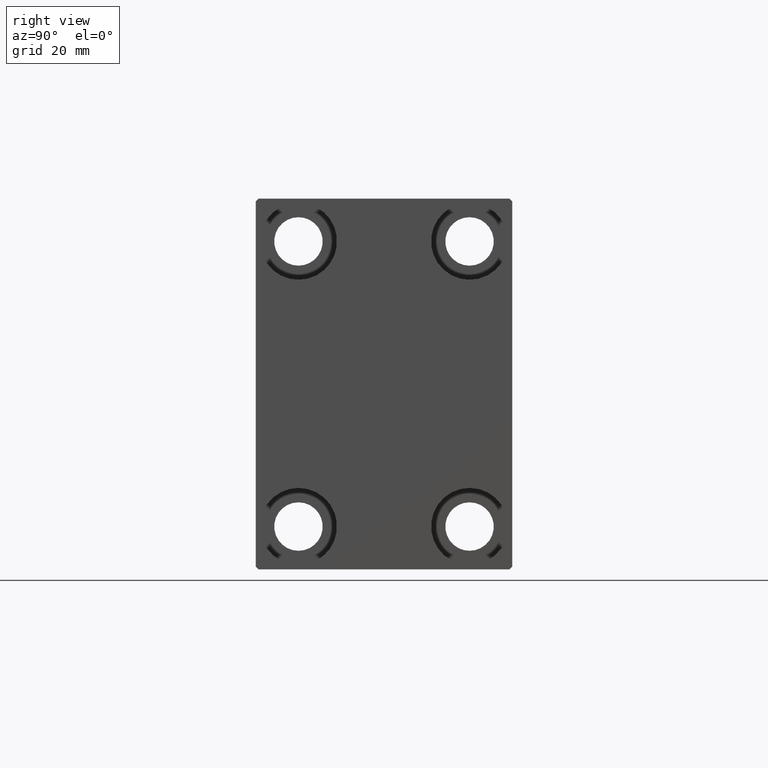
[diagram: clean part render]
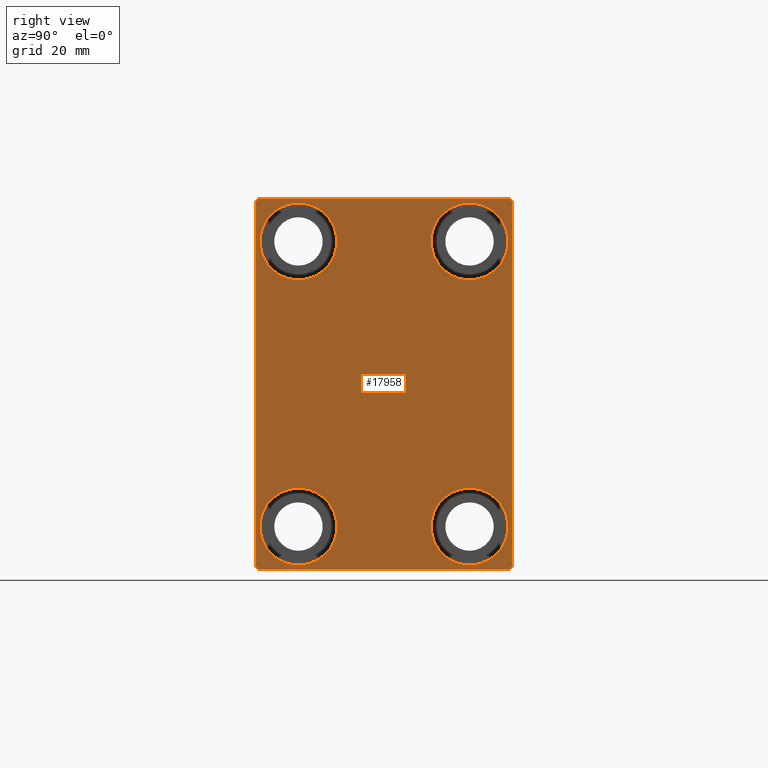
[diagram: same view with one face highlighted and labeled with its STEP entity id]
A machine part, right view. The second image highlights one B-rep face of the part: STEP entity #17958.
In plain terms, the highlighted planar face has unit normal (1, 0, 0).
Its self-contained STEP definition (entity closure, byte-faithful):
#405 = CARTESIAN_POINT ( 'NONE',  ( 70.00000000000000000, -22.50000000000000711, -32.00000000000000711 ) ) ;
#417 = CARTESIAN_POINT ( 'NONE',  ( 70.00000000000000000, -27.25000000000032330, -27.24999999999957012 ) ) ;
#1159 = CARTESIAN_POINT ( 'NONE',  ( 70.00000000000000000, 22.49999999999999289, 31.99999999999999289 ) ) ;
#1276 = DIRECTION ( 'NONE',  ( -1.000000000000000000, -0.000000000000000000, -0.000000000000000000 ) ) ;
#1317 = ORIENTED_EDGE ( 'NONE', *, *, #11341, .T. ) ;
#2338 = AXIS2_PLACEMENT_3D ( 'NONE', #12561, #43592, #9415 ) ;
#2372 = CIRCLE ( 'NONE', #3816, 6.749999999999999112 ) ;
#2762 = CARTESIAN_POINT ( 'NONE',  ( 70.00000000000000000, 27.25000000000032685, -27.24999999999957012 ) ) ;
#2795 = EDGE_CURVE ( 'NONE', #37065, #9356, #6783, .T. ) ;
#3186 = VERTEX_POINT ( 'NONE', #7405 ) ;
#3544 = CARTESIAN_POINT ( 'NONE',  ( 70.00000000000000000, -22.00000000000002132, -32.50000000000000711 ) ) ;
#3816 = AXIS2_PLACEMENT_3D ( 'NONE', #6569, #20881, #13290 ) ;
#3933 = FACE_BOUND ( 'NONE', #11805, .T. ) ;
#4301 = VECTOR ( 'NONE', #9015, 1000.000000000000114 ) ;
#4804 = AXIS2_PLACEMENT_3D ( 'NONE', #18365, #34910, #11225 ) ;
#5128 = CIRCLE ( 'NONE', #20104, 6.749999999999999112 ) ;
#5739 = CARTESIAN_POINT ( 'NONE',  ( 70.00000000000000000, -22.50000000000000711, 31.99999999999999289 ) ) ;
#6157 = LINE ( 'NONE', #19797, #11159 ) ;
#6569 = CARTESIAN_POINT ( 'NONE',  ( 70.00000000000000000, -14.99999999999999645, 25.00000000000000000 ) ) ;
#6782 = DIRECTION ( 'NONE',  ( -0.000000000000000000, -0.7071067811865425767, 0.7071067811865525687 ) ) ;
#6783 = LINE ( 'NONE', #16639, #7892 ) ;
#7405 = CARTESIAN_POINT ( 'NONE',  ( 70.00000000000000000, 14.99999999999999645, -31.75000000000000000 ) ) ;
#7892 = VECTOR ( 'NONE', #20194, 1000.000000000000000 ) ;
#8043 = EDGE_CURVE ( 'NONE', #42763, #34830, #24061, .T. ) ;
#8075 = LINE ( 'NONE', #35318, #42559 ) ;
#8164 = CARTESIAN_POINT ( 'NONE',  ( 70.00000000000000000, -14.99999999999999645, 18.25000000000000355 ) ) ;
#8458 = ORIENTED_EDGE ( 'NONE', *, *, #16544, .T. ) ;
#8802 = VECTOR ( 'NONE', #41941, 1000.000000000000114 ) ;
#9015 = DIRECTION ( 'NONE',  ( -0.000000000000000000, 0.7071067811865376918, 0.7071067811865573427 ) ) ;
#9356 = VERTEX_POINT ( 'NONE', #11215 ) ;
#9415 = DIRECTION ( 'NONE',  ( 0.000000000000000000, 0.000000000000000000, 1.000000000000000000 ) ) ;
#9535 = CIRCLE ( 'NONE', #25973, 6.749999999999999112 ) ;
#10192 = EDGE_CURVE ( 'NONE', #27007, #37689, #39935, .T. ) ;
#10963 = CIRCLE ( 'NONE', #20228, 6.749999999999999112 ) ;
#11159 = VECTOR ( 'NONE', #16018, 1000.000000000000000 ) ;
#11215 = CARTESIAN_POINT ( 'NONE',  ( 70.00000000000000000, 22.00000000000001421, -32.50000000000000711 ) ) ;
#11225 = DIRECTION ( 'NONE',  ( 0.000000000000000000, 0.000000000000000000, 1.000000000000000000 ) ) ;
#11341 = EDGE_CURVE ( 'NONE', #3186, #35985, #37894, .T. ) ;
#11805 = EDGE_LOOP ( 'NONE', ( #24363, #38604 ) ) ;
#11923 = EDGE_CURVE ( 'NONE', #34830, #42763, #5128, .T. ) ;
#12199 = DIRECTION ( 'NONE',  ( -1.000000000000000000, -0.000000000000000000, -0.000000000000000000 ) ) ;
#12230 = ORIENTED_EDGE ( 'NONE', *, *, #28853, .T. ) ;
#12481 = ORIENTED_EDGE ( 'NONE', *, *, #19038, .T. ) ;
#12561 = CARTESIAN_POINT ( 'NONE',  ( 70.00000000000000000, 15.00000000000000355, 25.00000000000000000 ) ) ;
#12813 = LINE ( 'NONE', #2762, #4301 ) ;
#13078 = VERTEX_POINT ( 'NONE', #1159 ) ;
#13276 = CARTESIAN_POINT ( 'NONE',  ( 70.00000000000000000, -21.99999999999999289, 32.49999999999999289 ) ) ;
#13290 = DIRECTION ( 'NONE',  ( 0.000000000000000000, 0.000000000000000000, 1.000000000000000000 ) ) ;
#13499 = VERTEX_POINT ( 'NONE', #40076 ) ;
#13716 = LINE ( 'NONE', #27342, #37630 ) ;
#14701 = LINE ( 'NONE', #28328, #8802 ) ;
#15712 = CARTESIAN_POINT ( 'NONE',  ( 70.00000000000000000, 21.99999999999999289, 32.50000000000000000 ) ) ;
#16018 = DIRECTION ( 'NONE',  ( 0.000000000000000000, 0.000000000000000000, -1.000000000000000000 ) ) ;
#16055 = DIRECTION ( 'NONE',  ( 0.000000000000000000, -1.000000000000000000, -1.541976423090495387E-16 ) ) ;
#16169 = DIRECTION ( 'NONE',  ( -1.000000000000000000, -0.000000000000000000, -0.000000000000000000 ) ) ;
#16174 = VECTOR ( 'NONE', #17169, 1000.000000000000000 ) ;
#16544 = EDGE_CURVE ( 'NONE', #24441, #16744, #40875, .T. ) ;
#16639 = CARTESIAN_POINT ( 'NONE',  ( 70.00000000000000000, -22.50000000000000711, -32.50000000000000711 ) ) ;
#16744 = VERTEX_POINT ( 'NONE', #41598 ) ;
#17169 = DIRECTION ( 'NONE',  ( -0.000000000000000000, 0.7071067811865378028, -0.7071067811865573427 ) ) ;
#17199 = ORIENTED_EDGE ( 'NONE', *, *, #20816, .T. ) ;
#17792 = CARTESIAN_POINT ( 'NONE',  ( 70.00000000000000000, 0.000000000000000000, 0.000000000000000000 ) ) ;
#17928 = AXIS2_PLACEMENT_3D ( 'NONE', #42400, #42609, #20794 ) ;
#17958 = ADVANCED_FACE ( 'NONE', ( #21140, #28075, #41248, #3933, #41023 ), #24710, .T. ) ;
#18147 = CIRCLE ( 'NONE', #41717, 6.749999999999999112 ) ;
#18365 = CARTESIAN_POINT ( 'NONE',  ( 70.00000000000000000, -15.00000000000000355, -25.00000000000000000 ) ) ;
#19038 = EDGE_CURVE ( 'NONE', #16744, #24441, #9535, .T. ) ;
#19123 = CARTESIAN_POINT ( 'NONE',  ( 70.00000000000000000, -14.99999999999999645, 25.00000000000000000 ) ) ;
#19797 = CARTESIAN_POINT ( 'NONE',  ( 70.00000000000000000, -22.50000000000000711, 32.49999999999999289 ) ) ;
#20077 = EDGE_LOOP ( 'NONE', ( #39152, #31328, #12230, #30128, #33546, #20588, #32562, #34962 ) ) ;
#20104 = AXIS2_PLACEMENT_3D ( 'NONE', #32909, #16169, #39190 ) ;
#20194 = DIRECTION ( 'NONE',  ( 0.000000000000000000, 1.000000000000000000, 0.000000000000000000 ) ) ;
#20228 = AXIS2_PLACEMENT_3D ( 'NONE', #19123, #12199, #22257 ) ;
#20287 = LINE ( 'NONE', #417, #16174 ) ;
#20439 = ORIENTED_EDGE ( 'NONE', *, *, #21789, .T. ) ;
#20588 = ORIENTED_EDGE ( 'NONE', *, *, #41863, .T. ) ;
#20794 = DIRECTION ( 'NONE',  ( 0.000000000000000000, 0.000000000000000000, 1.000000000000000000 ) ) ;
#20816 = EDGE_CURVE ( 'NONE', #41665, #13499, #2372, .T. ) ;
#20881 = DIRECTION ( 'NONE',  ( -1.000000000000000000, -0.000000000000000000, -0.000000000000000000 ) ) ;
#21140 = FACE_BOUND ( 'NONE', #21670, .T. ) ;
#21293 = EDGE_LOOP ( 'NONE', ( #8458, #12481 ) ) ;
#21670 = EDGE_LOOP ( 'NONE', ( #1317, #31696 ) ) ;
#21752 = EDGE_CURVE ( 'NONE', #37689, #38219, #14701, .T. ) ;
#21789 = EDGE_CURVE ( 'NONE', #13499, #41665, #10963, .T. ) ;
#22257 = DIRECTION ( 'NONE',  ( 0.000000000000000000, 0.000000000000000000, 1.000000000000000000 ) ) ;
#22755 = CARTESIAN_POINT ( 'NONE',  ( 70.00000000000000000, 22.49999999999999289, 32.50000000000000000 ) ) ;
#23514 = CARTESIAN_POINT ( 'NONE',  ( 70.00000000000000000, 15.00000000000000355, 18.25000000000000355 ) ) ;
#23639 = EDGE_CURVE ( 'NONE', #35985, #3186, #18147, .T. ) ;
#23740 = CARTESIAN_POINT ( 'NONE',  ( 70.00000000000000000, -15.00000000000000355, -31.75000000000000000 ) ) ;
#24061 = CIRCLE ( 'NONE', #4804, 6.749999999999999112 ) ;
#24363 = ORIENTED_EDGE ( 'NONE', *, *, #8043, .T. ) ;
#24379 = VERTEX_POINT ( 'NONE', #25754 ) ;
#24441 = VERTEX_POINT ( 'NONE', #23514 ) ;
#24528 = AXIS2_PLACEMENT_3D ( 'NONE', #17792, #27846, #38325 ) ;
#24710 = PLANE ( 'NONE',  #24528 ) ;
#25694 = CARTESIAN_POINT ( 'NONE',  ( 70.00000000000000000, 14.99999999999999645, -18.25000000000000355 ) ) ;
#25754 = CARTESIAN_POINT ( 'NONE',  ( 70.00000000000000000, 22.50000000000000000, -32.00000000000002132 ) ) ;
#25973 = AXIS2_PLACEMENT_3D ( 'NONE', #42132, #1276, #28087 ) ;
#27007 = VERTEX_POINT ( 'NONE', #15712 ) ;
#27342 = CARTESIAN_POINT ( 'NONE',  ( 70.00000000000000000, 27.25000000000014921, 27.24999999999976907 ) ) ;
#27846 = DIRECTION ( 'NONE',  ( 1.000000000000000000, 0.000000000000000000, 0.000000000000000000 ) ) ;
#28075 = FACE_BOUND ( 'NONE', #35652, .T. ) ;
#28087 = DIRECTION ( 'NONE',  ( 0.000000000000000000, 0.000000000000000000, 1.000000000000000000 ) ) ;
#28328 = CARTESIAN_POINT ( 'NONE',  ( 70.00000000000000000, -27.25000000000000000, 27.25000000000000000 ) ) ;
#28586 = CARTESIAN_POINT ( 'NONE',  ( 70.00000000000000000, 14.99999999999999645, -25.00000000000000000 ) ) ;
#28802 = DIRECTION ( 'NONE',  ( 0.000000000000000000, 0.000000000000000000, 1.000000000000000000 ) ) ;
#28853 = EDGE_CURVE ( 'NONE', #38219, #40599, #6157, .T. ) ;
#29296 = VECTOR ( 'NONE', #16055, 1000.000000000000000 ) ;
#29958 = CARTESIAN_POINT ( 'NONE',  ( 70.00000000000000000, -15.00000000000000355, -18.25000000000000355 ) ) ;
#30128 = ORIENTED_EDGE ( 'NONE', *, *, #30728, .T. ) ;
#30646 = EDGE_CURVE ( 'NONE', #24379, #13078, #8075, .T. ) ;
#30728 = EDGE_CURVE ( 'NONE', #40599, #37065, #20287, .T. ) ;
#31328 = ORIENTED_EDGE ( 'NONE', *, *, #21752, .T. ) ;
#31696 = ORIENTED_EDGE ( 'NONE', *, *, #23639, .T. ) ;
#32562 = ORIENTED_EDGE ( 'NONE', *, *, #30646, .T. ) ;
#32909 = CARTESIAN_POINT ( 'NONE',  ( 70.00000000000000000, -15.00000000000000355, -25.00000000000000000 ) ) ;
#33546 = ORIENTED_EDGE ( 'NONE', *, *, #2795, .T. ) ;
#34660 = DIRECTION ( 'NONE',  ( 0.000000000000000000, -1.067522139062650425E-16, 1.000000000000000000 ) ) ;
#34830 = VERTEX_POINT ( 'NONE', #29958 ) ;
#34910 = DIRECTION ( 'NONE',  ( -1.000000000000000000, -0.000000000000000000, -0.000000000000000000 ) ) ;
#34962 = ORIENTED_EDGE ( 'NONE', *, *, #37564, .T. ) ;
#35318 = CARTESIAN_POINT ( 'NONE',  ( 70.00000000000000000, 22.50000000000000000, -32.50000000000000711 ) ) ;
#35652 = EDGE_LOOP ( 'NONE', ( #17199, #20439 ) ) ;
#35985 = VERTEX_POINT ( 'NONE', #25694 ) ;
#37065 = VERTEX_POINT ( 'NONE', #3544 ) ;
#37564 = EDGE_CURVE ( 'NONE', #13078, #27007, #13716, .T. ) ;
#37630 = VECTOR ( 'NONE', #6782, 999.9999999999998863 ) ;
#37689 = VERTEX_POINT ( 'NONE', #13276 ) ;
#37894 = CIRCLE ( 'NONE', #17928, 6.749999999999999112 ) ;
#38219 = VERTEX_POINT ( 'NONE', #5739 ) ;
#38325 = DIRECTION ( 'NONE',  ( 0.000000000000000000, 0.000000000000000000, -1.000000000000000000 ) ) ;
#38604 = ORIENTED_EDGE ( 'NONE', *, *, #11923, .T. ) ;
#39152 = ORIENTED_EDGE ( 'NONE', *, *, #10192, .T. ) ;
#39190 = DIRECTION ( 'NONE',  ( 0.000000000000000000, 0.000000000000000000, 1.000000000000000000 ) ) ;
#39935 = LINE ( 'NONE', #22755, #29296 ) ;
#40076 = CARTESIAN_POINT ( 'NONE',  ( 70.00000000000000000, -14.99999999999999645, 31.75000000000000000 ) ) ;
#40599 = VERTEX_POINT ( 'NONE', #405 ) ;
#40875 = CIRCLE ( 'NONE', #2338, 6.749999999999999112 ) ;
#41023 = FACE_OUTER_BOUND ( 'NONE', #20077, .T. ) ;
#41248 = FACE_BOUND ( 'NONE', #21293, .T. ) ;
#41598 = CARTESIAN_POINT ( 'NONE',  ( 70.00000000000000000, 15.00000000000000355, 31.75000000000000000 ) ) ;
#41665 = VERTEX_POINT ( 'NONE', #8164 ) ;
#41717 = AXIS2_PLACEMENT_3D ( 'NONE', #28586, #42201, #28802 ) ;
#41863 = EDGE_CURVE ( 'NONE', #9356, #24379, #12813, .T. ) ;
#41941 = DIRECTION ( 'NONE',  ( 0.000000000000000000, -0.7071067811865474617, -0.7071067811865474617 ) ) ;
#42132 = CARTESIAN_POINT ( 'NONE',  ( 70.00000000000000000, 15.00000000000000355, 25.00000000000000000 ) ) ;
#42201 = DIRECTION ( 'NONE',  ( -1.000000000000000000, -0.000000000000000000, -0.000000000000000000 ) ) ;
#42400 = CARTESIAN_POINT ( 'NONE',  ( 70.00000000000000000, 14.99999999999999645, -25.00000000000000000 ) ) ;
#42559 = VECTOR ( 'NONE', #34660, 1000.000000000000000 ) ;
#42609 = DIRECTION ( 'NONE',  ( -1.000000000000000000, -0.000000000000000000, -0.000000000000000000 ) ) ;
#42763 = VERTEX_POINT ( 'NONE', #23740 ) ;
#43592 = DIRECTION ( 'NONE',  ( -1.000000000000000000, -0.000000000000000000, -0.000000000000000000 ) ) ;